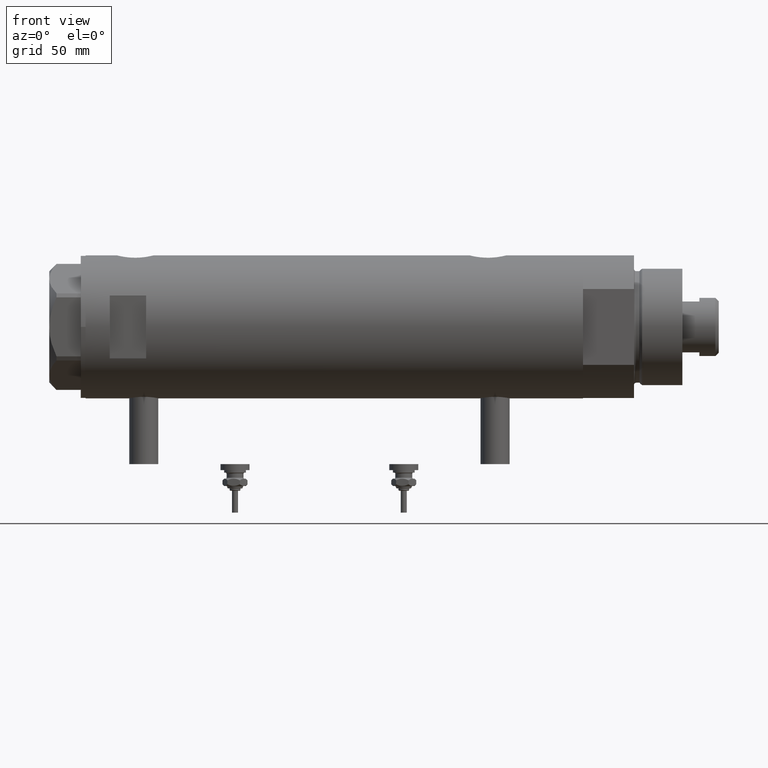
[diagram: clean part render]
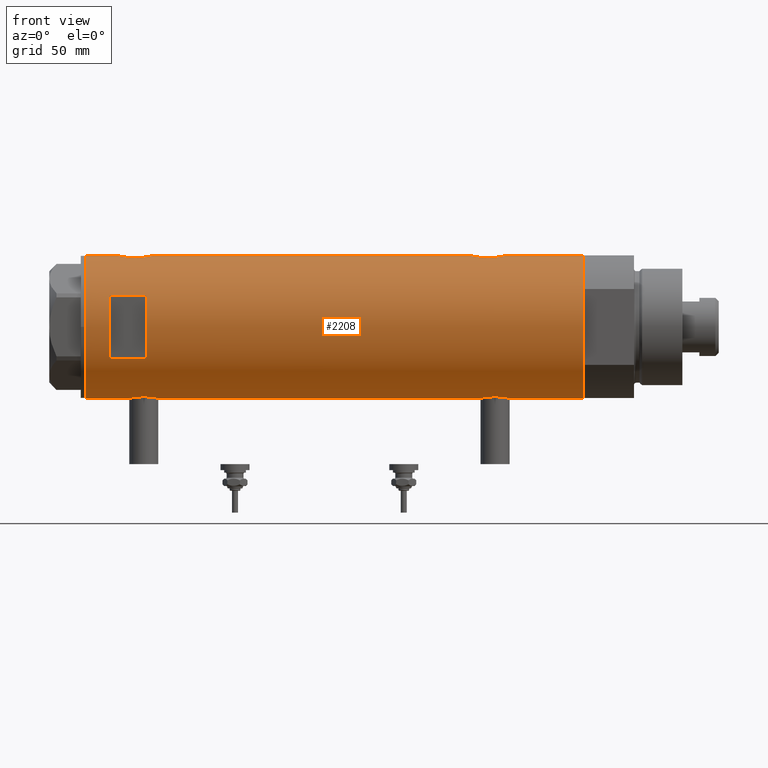
[diagram: same view with one face highlighted and labeled with its STEP entity id]
A machine part, front view. The second image highlights one B-rep face of the part: STEP entity #2208.
In plain terms, the highlighted cylindrical surface (partial cylindrical patch) has radius 29.5 mm, axis along (-1, -0, 0).
Its self-contained STEP definition (entity closure, byte-faithful):
#9 = CARTESIAN_POINT ( 'NONE',  ( -12.96148139681573319, -26.49999999999999645, -102.5999999999999943 ) ) ;
#16 = CARTESIAN_POINT ( 'NONE',  ( 0.000000000000000000, 0.000000000000000000, -102.5999999999999943 ) ) ;
#38 = EDGE_CURVE ( 'NONE', #5054, #2698, #5647, .T. ) ;
#50 = DIRECTION ( 'NONE',  ( 0.000000000000000000, 0.000000000000000000, 1.000000000000000000 ) ) ;
#72 = CARTESIAN_POINT ( 'NONE',  ( 28.54678862679669038, -7.438514536388041165, -62.41041725679207985 ) ) ;
#84 = CARTESIAN_POINT ( 'NONE',  ( -29.49128673965872238, -0.8227026017531463564, 84.80924441072095021 ) ) ;
#97 = CARTESIAN_POINT ( 'NONE',  ( 28.86290657878785026, -6.099358034152094099, -67.77130670042603811 ) ) ;
#110 = CARTESIAN_POINT ( 'NONE',  ( -28.87532468301956712, -6.038983942005353711, 76.97670632311465511 ) ) ;
#145 = CARTESIAN_POINT ( 'NONE',  ( -28.83028160285196151, -6.250189016175732526, 79.00967003214680062 ) ) ;
#168 = CARTESIAN_POINT ( 'NONE',  ( 28.62986945670067129, -7.114680680403742130, -60.97606223993307140 ) ) ;
#176 = ORIENTED_EDGE ( 'NONE', *, *, #4417, .F. ) ;
#196 = EDGE_LOOP ( 'NONE', ( #4236, #2558, #4154, #3562 ) ) ;
#231 = EDGE_CURVE ( 'NONE', #2698, #3925, #1364, .T. ) ;
#235 = CIRCLE ( 'NONE', #617, 29.50000000000000355 ) ;
#244 = ORIENTED_EDGE ( 'NONE', *, *, #3911, .T. ) ;
#252 = B_SPLINE_CURVE_WITH_KNOTS ( 'NONE', 3,
 ( #2697, #414, #2251, #3175, #1796, #3615, #913, #2729, #4532, #452, #2283, #1916, #4194, #5045, #3707, #5587, #5165, #110, #3800, #1501, #1442, #4589, #145, #971, #4170, #1854, #5503, #3266, #1092, #1979, #507, #2432, #2375, #2340, #5107, #542, #2855, #5554, #4132, #2882, #84, #3732, #4658 ),
 .UNSPECIFIED., .F., .F.,
 ( 4, 2, 2, 2, 2, 2, 2, 2, 2, 1, 2, 2, 2, 2, 2, 2, 2, 2, 2, 2, 2, 4 ),
 ( 0.01959598605283711936, 0.02082041500883365093, 0.02204484396483017902, 0.02265705844282843440, 0.02326927292082669324, 0.02449370187682320399, 0.02571813083281971821, 0.02694255978881623242, 0.02755477426681450515, 0.02816698874481278481, 0.02877920322281105753, 0.02939141770080933719, 0.03061584665680588957, 0.03184027561280243501, 0.03306470456879899433, 0.03367691904679726705, 0.03428913352479553978, 0.03551356248079206440, 0.03673799143678858903, 0.03735020591478684787, 0.03796242039278510672, 0.03918684934878163828 ),
 .UNSPECIFIED. ) ;
#261 = LINE ( 'NONE', #711, #4304 ) ;
#286 = CARTESIAN_POINT ( 'NONE',  ( 29.08294968506024247, -4.955368226349214034, 87.75096718198464885 ) ) ;
#288 = EDGE_CURVE ( 'NONE', #3810, #954, #404, .T. ) ;
#316 = CARTESIAN_POINT ( 'NONE',  ( 28.62983003203745369, -7.114781472982449451, 79.67726941146258923 ) ) ;
#350 = CARTESIAN_POINT ( 'NONE',  ( 28.98740664105171660, -5.478212189394670695, 76.97180483814203455 ) ) ;
#351 = CARTESIAN_POINT ( 'NONE',  ( -28.83909499632369133, -6.209928350489664517, -65.48382218917039665 ) ) ;
#374 = EDGE_CURVE ( 'NONE', #5068, #1773, #4092, .T. ) ;
#375 = CARTESIAN_POINT ( 'NONE',  ( 28.53070445389873200, -7.499926890973435789, 82.34953420512914590 ) ) ;
#377 = CARTESIAN_POINT ( 'NONE',  ( -29.49152014567324542, -0.8152473631539814969, -72.51035294833330624 ) ) ;
#404 = LINE ( 'NONE', #437, #3926 ) ;
#414 = CARTESIAN_POINT ( 'NONE',  ( -29.50000000000000711, -0.4084468586314294880, 72.34999999999999432 ) ) ;
#437 = CARTESIAN_POINT ( 'NONE',  ( 29.50000000000000355, 0.000000000000000000, -102.5999999999999943 ) ) ;
#442 = DIRECTION ( 'NONE',  ( 0.000000000000000000, 0.000000000000000000, 1.000000000000000000 ) ) ;
#445 = DIRECTION ( 'NONE',  ( 1.000000000000000000, 0.000000000000000000, 0.000000000000000000 ) ) ;
#446 = DIRECTION ( 'NONE',  ( 0.000000000000000000, 0.000000000000000000, 1.000000000000000000 ) ) ;
#452 = CARTESIAN_POINT ( 'NONE',  ( -29.25427426731712188, -3.815048240656433887, 73.63259231846663511 ) ) ;
#468 = CARTESIAN_POINT ( 'NONE',  ( -28.89828397447510966, -5.929977241120613307, -64.28388047758002699 ) ) ;
#488 = VERTEX_POINT ( 'NONE', #5191 ) ;
#507 = CARTESIAN_POINT ( 'NONE',  ( -29.12311479234995915, -4.702282052053731398, 82.72223528886483734 ) ) ;
#527 = CARTESIAN_POINT ( 'NONE',  ( 29.08294968506023181, -4.955368226349209593, -57.74903281801530142 ) ) ;
#542 = CARTESIAN_POINT ( 'NONE',  ( -29.37136442049237672, -2.777615426151010869, 84.21365112622117977 ) ) ;
#560 = CARTESIAN_POINT ( 'NONE',  ( 29.48775985681159639, -0.9798361908152574129, -55.94769556118672682 ) ) ;
#582 = CARTESIAN_POINT ( 'NONE',  ( -29.50000000000000355, -5.649958391113855330E-16, 84.85000000000000853 ) ) ;
#617 = AXIS2_PLACEMENT_3D ( 'NONE', #4978, #446, #5802 ) ;
#622 = EDGE_CURVE ( 'NONE', #2407, #4667, #261, .T. ) ;
#638 = VECTOR ( 'NONE', #1623, 1000.000000000000000 ) ;
#683 = VERTEX_POINT ( 'NONE', #2266 ) ;
#711 = CARTESIAN_POINT ( 'NONE',  ( 29.50000000000000355, 0.000000000000000000, -102.5999999999999943 ) ) ;
#751 = CARTESIAN_POINT ( 'NONE',  ( 28.59279484545186989, -7.260293545345781752, 80.15593442015527614 ) ) ;
#779 = CARTESIAN_POINT ( 'NONE',  ( 29.33743940633121028, -3.100990836771693626, 88.93327512439064719 ) ) ;
#788 = CARTESIAN_POINT ( 'NONE',  ( 29.50000000000000355, 0.000000000000000000, -102.5999999999999943 ) ) ;
#807 = CARTESIAN_POINT ( 'NONE',  ( 29.50000000000000711, -0.4976091310423271241, 74.59999999999996589 ) ) ;
#843 = CARTESIAN_POINT ( 'NONE',  ( 28.53399451186754732, -7.487442594623194836, 82.59897485501112158 ) ) ;
#844 = CARTESIAN_POINT ( 'NONE',  ( -29.45566469296798928, -1.628675872921106160, -60.26243967371323862 ) ) ;
#875 = LINE ( 'NONE', #2691, #5213 ) ;
#913 = CARTESIAN_POINT ( 'NONE',  ( -29.37055817176825201, -2.766456155496577196, 72.99186392411090196 ) ) ;
#954 = VERTEX_POINT ( 'NONE', #5628 ) ;
#966 = CARTESIAN_POINT ( 'NONE',  ( 12.96148139681573319, -26.49999999999998934, 77.59999999999996589 ) ) ;
#971 = CARTESIAN_POINT ( 'NONE',  ( -28.83909499632370199, -6.209928350489659188, 79.41617781082962324 ) ) ;
#978 = CARTESIAN_POINT ( 'NONE',  ( 29.50000000000000355, 0.000000000000000000, -102.5999999999999943 ) ) ;
#1010 = CARTESIAN_POINT ( 'NONE',  ( -29.50000000000000355, 3.612708057484692393E-15, 102.5999999999999943 ) ) ;
#1050 = CARTESIAN_POINT ( 'NONE',  ( 29.08168479815707386, -4.954011967599724287, -69.03627368515267904 ) ) ;
#1080 = CARTESIAN_POINT ( 'NONE',  ( 29.50000000000000355, -1.919926123348039602E-15, -70.89999999999999147 ) ) ;
#1092 = CARTESIAN_POINT ( 'NONE',  ( -29.05872136210575007, -5.084685578900221437, 82.24009991908759787 ) ) ;
#1113 = CARTESIAN_POINT ( 'NONE',  ( 29.31438578683261298, -3.335040812377227049, -70.13547276843773659 ) ) ;
#1132 = AXIS2_PLACEMENT_3D ( 'NONE', #2414, #3749, #1482 ) ;
#1195 = CARTESIAN_POINT ( 'NONE',  ( 28.53064705443909688, -7.500145243772297299, 81.60755296708880735 ) ) ;
#1229 = CARTESIAN_POINT ( 'NONE',  ( 29.08168479815708096, -4.954011967599733168, 76.46372631484730675 ) ) ;
#1254 = CARTESIAN_POINT ( 'NONE',  ( 29.43916859571211830, -1.954329820671505402, 74.84235520757910365 ) ) ;
#1256 = CARTESIAN_POINT ( 'NONE',  ( -28.99772237063719160, -5.425436006677736955, -63.17037325447360985 ) ) ;
#1282 = CARTESIAN_POINT ( 'NONE',  ( 28.95619957017310853, -5.640369376407885937, 87.04939726490175644 ) ) ;
#1285 = CARTESIAN_POINT ( 'NONE',  ( -29.33428005013168871, -3.127775714777726979, -71.71493203872593369 ) ) ;
#1329 = CARTESIAN_POINT ( 'NONE',  ( 0.000000000000000000, 0.000000000000000000, 77.60000000000007958 ) ) ;
#1341 = CARTESIAN_POINT ( 'NONE',  ( -28.87532468301956357, -6.038983942005360817, -67.92329367688532216 ) ) ;
#1364 = B_SPLINE_CURVE_WITH_KNOTS ( 'NONE', 3,
 ( #4970, #3196, #377, #5880, #4435, #4462, #1785, #1285, #5821, #1812, #3631, #1729, #3166, #2186, #2689, #3514, #3604, #1341, #2716, #4910, #4879, #3107, #2631, #351, #5455, #468, #3994, #1256, #2212, #5911, #3543, #1368, #5369, #3576, #3077, #2298, #5793, #5429, #844, #2667, #5003, #4016, #5846 ),
 .UNSPECIFIED., .F., .F.,
 ( 4, 2, 2, 2, 2, 2, 2, 2, 2, 1, 2, 2, 2, 2, 2, 2, 2, 2, 2, 2, 2, 4 ),
 ( 0.01959598605283713324, 0.02082041500883367521, 0.02204484396483021719, 0.02265705844282847950, 0.02326927292082674181, 0.02449370187682326991, 0.02571813083281979800, 0.02694255978881632610, 0.02755477426681458841, 0.02816698874481285420, 0.02877920322281111998, 0.02939141770080938229, 0.03061584665680591039, 0.03184027561280243501, 0.03306470456879896658, 0.03367691904679723236, 0.03428913352479549814, 0.03551356248079203665, 0.03673799143678857515, 0.03735020591478684787, 0.03796242039278512059, 0.03918684934878166604 ),
 .UNSPECIFIED. ) ;
#1368 = CARTESIAN_POINT ( 'NONE',  ( -29.14490888978863481, -4.565669626908231749, -62.02701820123785126 ) ) ;
#1369 = ORIENTED_EDGE ( 'NONE', *, *, #1694, .F. ) ;
#1407 = VECTOR ( 'NONE', #3505, 1000.000000000000000 ) ;
#1442 = CARTESIAN_POINT ( 'NONE',  ( -28.83260549167351527, -6.239494599049529633, 78.18384915698197801 ) ) ;
#1455 = CARTESIAN_POINT ( 'NONE',  ( 28.59279484545185923, -7.260293545345786193, -65.34406557984468122 ) ) ;
#1482 = DIRECTION ( 'NONE',  ( 1.000000000000000000, 0.000000000000000000, 0.000000000000000000 ) ) ;
#1485 = CARTESIAN_POINT ( 'NONE',  ( 28.62983003203745014, -7.114781472982452115, -65.82273058853736813 ) ) ;
#1490 = VERTEX_POINT ( 'NONE', #788 ) ;
#1501 = CARTESIAN_POINT ( 'NONE',  ( -28.84137202824162571, -6.198846007008988579, 77.77611738876129266 ) ) ;
#1521 = CARTESIAN_POINT ( 'NONE',  ( 29.31311917412634926, -3.322476152549155071, -56.67157014735702347 ) ) ;
#1550 = CARTESIAN_POINT ( 'NONE',  ( 28.72051071455670623, -6.739402597165503828, -66.72718973703749157 ) ) ;
#1578 = CARTESIAN_POINT ( 'NONE',  ( 29.50000000000000355, 0.000000000000000000, 102.5999999999999943 ) ) ;
#1623 = DIRECTION ( 'NONE',  ( 0.000000000000000000, 0.000000000000000000, 1.000000000000000000 ) ) ;
#1636 = VERTEX_POINT ( 'NONE', #966 ) ;
#1638 = CARTESIAN_POINT ( 'NONE',  ( 29.31311917412635992, -3.322476152549159067, 88.82842985264295521 ) ) ;
#1670 = CARTESIAN_POINT ( 'NONE',  ( 29.43922820968271736, -1.954457150219037542, 89.35789347245771808 ) ) ;
#1694 = EDGE_CURVE ( 'NONE', #3810, #488, #4442, .T. ) ;
#1729 = CARTESIAN_POINT ( 'NONE',  ( -29.12379578281188230, -4.705261494361433705, -70.43387957720274528 ) ) ;
#1754 = CARTESIAN_POINT ( 'NONE',  ( 29.50000000000000355, -8.867907290838723877E-21, 89.59999999999998010 ) ) ;
#1773 = VERTEX_POINT ( 'NONE', #2593 ) ;
#1785 = CARTESIAN_POINT ( 'NONE',  ( -29.37055817176824846, -2.766456155496580305, -71.90813607588914635 ) ) ;
#1796 = CARTESIAN_POINT ( 'NONE',  ( -29.43333839972900989, -2.017691896334575130, 72.67064010952158526 ) ) ;
#1812 = CARTESIAN_POINT ( 'NONE',  ( -29.25427426731712899, -3.815048240656443657, -71.26740768153337058 ) ) ;
#1843 = DIRECTION ( 'NONE',  ( -0.000000000000000000, -0.000000000000000000, -1.000000000000000000 ) ) ;
#1846 = AXIS2_PLACEMENT_3D ( 'NONE', #16, #1850, #1912 ) ;
#1850 = DIRECTION ( 'NONE',  ( 0.000000000000000000, 0.000000000000000000, 1.000000000000000000 ) ) ;
#1854 = CARTESIAN_POINT ( 'NONE',  ( -28.89828397447510966, -5.929977241120605314, 80.61611952241997869 ) ) ;
#1906 = CARTESIAN_POINT ( 'NONE',  ( 28.53070445389874266, -7.499926890973439342, -63.15046579487081146 ) ) ;
#1912 = DIRECTION ( 'NONE',  ( 1.000000000000000000, 0.000000000000000000, 0.000000000000000000 ) ) ;
#1916 = CARTESIAN_POINT ( 'NONE',  ( -29.12379578281188230, -4.705261494361423935, 74.46612042279726040 ) ) ;
#1922 = LINE ( 'NONE', #978, #2640 ) ;
#1925 = ORIENTED_EDGE ( 'NONE', *, *, #622, .T. ) ;
#1929 = CARTESIAN_POINT ( 'NONE',  ( 28.89374847711160754, -5.952001739005060799, -67.96983981079635839 ) ) ;
#1966 = CARTESIAN_POINT ( 'NONE',  ( 29.17410189149616428, -4.377709617224027738, -69.49475827476021550 ) ) ;
#1970 = VERTEX_POINT ( 'NONE', #3492 ) ;
#1979 = CARTESIAN_POINT ( 'NONE',  ( -29.08006251441182854, -4.961575945539721921, 82.40618502052524263 ) ) ;
#2004 = ORIENTED_EDGE ( 'NONE', *, *, #231, .F. ) ;
#2023 = CARTESIAN_POINT ( 'NONE',  ( 29.23250901027694937, -3.968959760999276831, -57.03153982712335335 ) ) ;
#2087 = DIRECTION ( 'NONE',  ( 0.000000000000000000, 0.000000000000000000, 1.000000000000000000 ) ) ;
#2100 = B_SPLINE_CURVE_WITH_KNOTS ( 'NONE', 3,
 ( #3102, #4371, #5397, #1670, #3901, #779, #1638, #2599, #5842, #4461, #286, #4397, #1282, #3449, #5727, #5791, #3991, #5278, #4907, #2115, #3927, #843, #375, #1195, #2542, #751, #316, #3019, #3512, #4431, #2209, #5315, #350, #4015, #1229, #3051, #4876, #2183, #5339, #3955, #1254, #3074, #807, #2630 ),
 .UNSPECIFIED., .F., .F.,
 ( 4, 2, 2, 2, 2, 2, 2, 2, 2, 2, 2, 2, 2, 2, 2, 2, 2, 2, 2, 2, 2, 4 ),
 ( 0.02354540741801909587, 0.02501659793198026879, 0.02648778844594144172, 0.02722338370292202298, 0.02795897895990260076, 0.02943016947386375981, 0.03016576473084434107, 0.03090135998782492233, 0.03237255050178604321, 0.03384374101574717103, 0.03457933627272773841, 0.03531493152970829885, 0.03678612204366942667, 0.03825731255763055449, 0.03972850307159167538, 0.04046409832857222888, 0.04119969358555276850, 0.04193528884253332201, 0.04267088409951386857, 0.04414207461347498251, 0.04561326512743610340, 0.04708445564139722428 ),
 .UNSPECIFIED. ) ;
#2103 = EDGE_CURVE ( 'NONE', #1970, #5068, #2710, .T. ) ;
#2115 = CARTESIAN_POINT ( 'NONE',  ( 28.55627543367307553, -7.402134446380880917, 83.33219650318234528 ) ) ;
#2183 = CARTESIAN_POINT ( 'NONE',  ( 29.26166309680877475, -3.765013078516723066, 75.59489767946935501 ) ) ;
#2186 = CARTESIAN_POINT ( 'NONE',  ( -28.99856997507318823, -5.420860550814443179, -69.43723012145801476 ) ) ;
#2208 = ADVANCED_FACE ( 'NONE', ( #5065, #5041 ), #3611, .T. ) ;
#2209 = CARTESIAN_POINT ( 'NONE',  ( 28.89374847711160754, -5.952001739005070569, 77.53016018920365582 ) ) ;
#2212 = CARTESIAN_POINT ( 'NONE',  ( -29.05872136210575718, -5.084685578900231206, -62.65990008091243624 ) ) ;
#2240 = DIRECTION ( 'NONE',  ( 0.000000000000000000, 0.000000000000000000, 1.000000000000000000 ) ) ;
#2251 = CARTESIAN_POINT ( 'NONE',  ( -29.49152014567325253, -0.8152473631539810528, 72.38964705166668523 ) ) ;
#2266 = CARTESIAN_POINT ( 'NONE',  ( -29.50000000000000355, 3.612706708236066082E-15, 72.34999999999999432 ) ) ;
#2283 = CARTESIAN_POINT ( 'NONE',  ( -29.21108587560690495, -4.128853169727745964, 73.89032723090410570 ) ) ;
#2298 = CARTESIAN_POINT ( 'NONE',  ( -29.37136442049237672, -2.777615426151009537, -60.68634887377884013 ) ) ;
#2340 = CARTESIAN_POINT ( 'NONE',  ( -29.25361239466580798, -3.820294933898100709, 83.56357989714041423 ) ) ;
#2351 = CARTESIAN_POINT ( 'NONE',  ( -29.50000000000000355, 3.612708057484692393E-15, -102.5999999999999943 ) ) ;
#2375 = CARTESIAN_POINT ( 'NONE',  ( -29.21016169868140366, -4.135295259288786163, 83.30390088086510048 ) ) ;
#2392 = CARTESIAN_POINT ( 'NONE',  ( 29.33743940633121028, -3.100990836771692738, -56.56672487560931728 ) ) ;
#2396 = EDGE_CURVE ( 'NONE', #2407, #954, #2100, .T. ) ;
#2407 = VERTEX_POINT ( 'NONE', #1754 ) ;
#2414 = CARTESIAN_POINT ( 'NONE',  ( 0.000000000000000000, 0.000000000000000000, -102.5999999999999943 ) ) ;
#2418 = CARTESIAN_POINT ( 'NONE',  ( 28.72151714661535138, -6.735173278284154463, -60.06359529429123256 ) ) ;
#2432 = CARTESIAN_POINT ( 'NONE',  ( -29.14490888978864191, -4.565669626908226419, 82.87298179876219706 ) ) ;
#2450 = CARTESIAN_POINT ( 'NONE',  ( 29.50000000000000355, -8.867907290838723877E-21, -55.89999999999997016 ) ) ;
#2542 = CARTESIAN_POINT ( 'NONE',  ( 28.54347630091233512, -7.451827970232800524, 81.11943218216039497 ) ) ;
#2558 = ORIENTED_EDGE ( 'NONE', *, *, #374, .F. ) ;
#2593 = CARTESIAN_POINT ( 'NONE',  ( -12.96148139681573319, -26.49999999999998934, 77.59999999999996589 ) ) ;
#2599 = CARTESIAN_POINT ( 'NONE',  ( 29.26065241255351523, -3.756597382275449704, 88.59604434819190999 ) ) ;
#2630 = CARTESIAN_POINT ( 'NONE',  ( 29.50000000000000355, -2.245054425791785664E-15, 74.59999999999996589 ) ) ;
#2631 = CARTESIAN_POINT ( 'NONE',  ( -28.83028160285196506, -6.250189016175740520, -65.89032996785323348 ) ) ;
#2640 = VECTOR ( 'NONE', #4238, 1000.000000000000000 ) ;
#2667 = CARTESIAN_POINT ( 'NONE',  ( -29.46613381094002193, -1.427468570127975456, -60.21172459459602777 ) ) ;
#2689 = CARTESIAN_POINT ( 'NONE',  ( -28.96147498926091401, -5.613273026676368183, -69.07892698342581639 ) ) ;
#2691 = CARTESIAN_POINT ( 'NONE',  ( 12.96148139681573319, -26.49999999999999645, -102.5999999999999943 ) ) ;
#2697 = CARTESIAN_POINT ( 'NONE',  ( -29.50000000000000355, 3.612706708236066082E-15, 72.34999999999999432 ) ) ;
#2698 = VERTEX_POINT ( 'NONE', #4244 ) ;
#2710 = CIRCLE ( 'NONE', #3188, 29.50000000000000355 ) ;
#2716 = CARTESIAN_POINT ( 'NONE',  ( -28.85437274499025406, -6.138402965889072860, -67.52756596705081904 ) ) ;
#2729 = CARTESIAN_POINT ( 'NONE',  ( -29.33428005013168871, -3.127775714777721650, 73.18506796127408620 ) ) ;
#2837 = CARTESIAN_POINT ( 'NONE',  ( 29.50000000000000355, -0.4905639552620941202, -55.89999999999995595 ) ) ;
#2855 = CARTESIAN_POINT ( 'NONE',  ( -29.41741605749267308, -2.213861184585004249, 84.44831174451374523 ) ) ;
#2869 = EDGE_CURVE ( 'NONE', #3960, #4667, #235, .T. ) ;
#2871 = CARTESIAN_POINT ( 'NONE',  ( 29.26065241255351168, -3.756597382275448371, -56.90395565180807580 ) ) ;
#2882 = CARTESIAN_POINT ( 'NONE',  ( -29.46613381094001127, -1.427468570127966574, 84.68827540540398502 ) ) ;
#2900 = CARTESIAN_POINT ( 'NONE',  ( 28.54347630091233512, -7.451827970232803189, -64.38056781783956239 ) ) ;
#2928 = CARTESIAN_POINT ( 'NONE',  ( -29.50000000000000355, 3.612708057484692393E-15, -102.5999999999999943 ) ) ;
#2932 = CARTESIAN_POINT ( 'NONE',  ( 29.40305664607911851, -2.432276947006143164, -70.51147801006587201 ) ) ;
#3019 = CARTESIAN_POINT ( 'NONE',  ( 28.72051071455670979, -6.739402597165495834, 78.77281026296242317 ) ) ;
#3051 = CARTESIAN_POINT ( 'NONE',  ( 29.14351131874356682, -4.576283785862482745, 76.15294675151480419 ) ) ;
#3074 = CARTESIAN_POINT ( 'NONE',  ( 29.48742104091791205, -0.9879539515379935910, 74.64904301646019746 ) ) ;
#3077 = CARTESIAN_POINT ( 'NONE',  ( -29.33479068874800078, -3.136645782783869851, -60.87844745385528711 ) ) ;
#3102 = CARTESIAN_POINT ( 'NONE',  ( 29.50000000000000355, -8.867907290838723877E-21, 89.59999999999998010 ) ) ;
#3107 = CARTESIAN_POINT ( 'NONE',  ( -28.83034328164762528, -6.249904501012249369, -66.50914539564061556 ) ) ;
#3166 = CARTESIAN_POINT ( 'NONE',  ( -29.07948744859177381, -4.968520850090771823, -70.11336367378893897 ) ) ;
#3175 = CARTESIAN_POINT ( 'NONE',  ( -29.45797511864983420, -1.625450914296656002, 72.55094872469950928 ) ) ;
#3176 = ORIENTED_EDGE ( 'NONE', *, *, #4216, .F. ) ;
#3188 = AXIS2_PLACEMENT_3D ( 'NONE', #4127, #4525, #445 ) ;
#3196 = CARTESIAN_POINT ( 'NONE',  ( -29.50000000000000711, -0.4084468586314322081, -72.54999999999999716 ) ) ;
#3208 = DIRECTION ( 'NONE',  ( -0.000000000000000000, -4.625929269271487689E-15, 1.000000000000000000 ) ) ;
#3220 = AXIS2_PLACEMENT_3D ( 'NONE', #1329, #3208, #4078 ) ;
#3236 = CARTESIAN_POINT ( 'NONE',  ( -29.50000000000000355, 3.612708057484692393E-15, -102.5999999999999943 ) ) ;
#3266 = CARTESIAN_POINT ( 'NONE',  ( -28.99772237063717739, -5.425436006677727185, 81.72962674552640294 ) ) ;
#3283 = CARTESIAN_POINT ( 'NONE',  ( 28.55627543367307553, -7.402134446380881805, -62.16780349681759787 ) ) ;
#3314 = CARTESIAN_POINT ( 'NONE',  ( 28.53064705443909332, -7.500145243772297299, -63.89244703291116423 ) ) ;
#3339 = CARTESIAN_POINT ( 'NONE',  ( 29.48742104091792271, -0.9879539515379904824, -70.85095698353975990 ) ) ;
#3368 = CARTESIAN_POINT ( 'NONE',  ( 29.05028789344173035, -5.134328181356800691, -68.87246457606266858 ) ) ;
#3398 = CARTESIAN_POINT ( 'NONE',  ( 28.77541267587657714, -6.504036106227648162, -59.63371449864082052 ) ) ;
#3426 = ORIENTED_EDGE ( 'NONE', *, *, #38, .F. ) ;
#3449 = CARTESIAN_POINT ( 'NONE',  ( 28.89374408016310269, -5.952042782108800445, 86.66984537025962254 ) ) ;
#3492 = CARTESIAN_POINT ( 'NONE',  ( 12.96148139681573319, -26.49999999999998934, 92.59999999999999432 ) ) ;
#3505 = DIRECTION ( 'NONE',  ( 0.000000000000000000, 0.000000000000000000, 1.000000000000000000 ) ) ;
#3512 = CARTESIAN_POINT ( 'NONE',  ( 28.77424839213763264, -6.509286280845844708, 78.34218748394037846 ) ) ;
#3514 = CARTESIAN_POINT ( 'NONE',  ( -28.91427970886710597, -5.849862889315917691, -68.50993133128852719 ) ) ;
#3541 = VECTOR ( 'NONE', #50, 1000.000000000000000 ) ;
#3543 = CARTESIAN_POINT ( 'NONE',  ( -29.12311479234994849, -4.702282052053745609, -62.17776471113518966 ) ) ;
#3562 = ORIENTED_EDGE ( 'NONE', *, *, #5781, .F. ) ;
#3576 = CARTESIAN_POINT ( 'NONE',  ( -29.25361239466581864, -3.820294933898108258, -61.33642010285960566 ) ) ;
#3604 = CARTESIAN_POINT ( 'NONE',  ( -28.89999183068148270, -5.919812056825926483, -68.31500238835417349 ) ) ;
#3611 = CYLINDRICAL_SURFACE ( 'NONE', #1846, 29.50000000000000355 ) ;
#3615 = CARTESIAN_POINT ( 'NONE',  ( -29.38738983524999782, -2.582042051636495028, 72.90464828404618913 ) ) ;
#3631 = CARTESIAN_POINT ( 'NONE',  ( -29.21108587560690495, -4.128853169727751293, -71.00967276909594261 ) ) ;
#3707 = CARTESIAN_POINT ( 'NONE',  ( -28.96147498926092112, -5.613273026676368183, 75.82107301657420351 ) ) ;
#3720 = CARTESIAN_POINT ( 'NONE',  ( 28.89374408016310269, -5.952042782108800445, -58.83015462974032062 ) ) ;
#3732 = CARTESIAN_POINT ( 'NONE',  ( -29.50000000000000000, -0.4141077724969869922, 84.84999999999999432 ) ) ;
#3749 = DIRECTION ( 'NONE',  ( 0.000000000000000000, 0.000000000000000000, 1.000000000000000000 ) ) ;
#3752 = CARTESIAN_POINT ( 'NONE',  ( 28.95592074821772854, -5.641779806288295340, -68.34773495802029686 ) ) ;
#3771 = ORIENTED_EDGE ( 'NONE', *, *, #4749, .F. ) ;
#3780 = CIRCLE ( 'NONE', #3220, 29.50000000000000355 ) ;
#3785 = CARTESIAN_POINT ( 'NONE',  ( 29.43916859571211120, -1.954329820671502516, -70.65764479242088214 ) ) ;
#3800 = CARTESIAN_POINT ( 'NONE',  ( -28.85437274499025406, -6.138402965889066643, 77.37243403294918664 ) ) ;
#3810 = VERTEX_POINT ( 'NONE', #4666 ) ;
#3820 = CARTESIAN_POINT ( 'NONE',  ( 28.53399451186755442, -7.487442594623195724, -62.90102514498884290 ) ) ;
#3886 = LINE ( 'NONE', #5713, #638 ) ;
#3901 = CARTESIAN_POINT ( 'NONE',  ( 29.40378957563274653, -2.423455993307769507, 89.21449460115985630 ) ) ;
#3911 = EDGE_CURVE ( 'NONE', #1490, #488, #1922, .T. ) ;
#3925 = VERTEX_POINT ( 'NONE', #5510 ) ;
#3926 = VECTOR ( 'NONE', #2240, 1000.000000000000000 ) ;
#3927 = CARTESIAN_POINT ( 'NONE',  ( 28.54678862679668327, -7.438514536388042053, 83.08958274320788462 ) ) ;
#3955 = CARTESIAN_POINT ( 'NONE',  ( 29.40305664607912917, -2.432276947006154710, 74.98852198993408535 ) ) ;
#3960 = VERTEX_POINT ( 'NONE', #1010 ) ;
#3991 = CARTESIAN_POINT ( 'NONE',  ( 28.72151714661535848, -6.735173278284159792, 85.43640470570878165 ) ) ;
#3994 = CARTESIAN_POINT ( 'NONE',  ( -28.96072448608915195, -5.617106371651702013, -63.52917268339557211 ) ) ;
#4015 = CARTESIAN_POINT ( 'NONE',  ( 29.05028789344173035, -5.134328181356801579, 76.62753542393731720 ) ) ;
#4016 = CARTESIAN_POINT ( 'NONE',  ( -29.50000000000000355, -0.4141077724969879359, -60.04999999999999005 ) ) ;
#4052 = ORIENTED_EDGE ( 'NONE', *, *, #4725, .T. ) ;
#4078 = DIRECTION ( 'NONE',  ( 1.776356839400250267E-15, 1.000000000000000000, 4.704334850106595203E-15 ) ) ;
#4092 = LINE ( 'NONE', #9, #4199 ) ;
#4127 = CARTESIAN_POINT ( 'NONE',  ( 0.000000000000000000, 0.000000000000000000, 92.59999999999999432 ) ) ;
#4132 = CARTESIAN_POINT ( 'NONE',  ( -29.45566469296797507, -1.628675872921092616, 84.63756032628675996 ) ) ;
#4150 = EDGE_CURVE ( 'NONE', #1773, #1636, #3780, .T. ) ;
#4154 = ORIENTED_EDGE ( 'NONE', *, *, #2103, .F. ) ;
#4170 = CARTESIAN_POINT ( 'NONE',  ( -28.87288655002252113, -6.050870399762838581, 80.21750540721806999 ) ) ;
#4183 = CARTESIAN_POINT ( 'NONE',  ( 28.77424839213763619, -6.509286280845844708, -67.15781251605956470 ) ) ;
#4194 = CARTESIAN_POINT ( 'NONE',  ( -29.07948744859177381, -4.968520850090764718, 74.78663632621106672 ) ) ;
#4199 = VECTOR ( 'NONE', #1843, 1000.000000000000000 ) ;
#4216 = EDGE_CURVE ( 'NONE', #683, #4685, #252, .T. ) ;
#4236 = ORIENTED_EDGE ( 'NONE', *, *, #4150, .F. ) ;
#4238 = DIRECTION ( 'NONE',  ( 0.000000000000000000, 0.000000000000000000, 1.000000000000000000 ) ) ;
#4244 = CARTESIAN_POINT ( 'NONE',  ( -29.50000000000000355, 3.612706708267620518E-15, -72.54999999999999716 ) ) ;
#4251 = CARTESIAN_POINT ( 'NONE',  ( 28.95619957017311563, -5.640369376407885049, -58.45060273509820092 ) ) ;
#4304 = VECTOR ( 'NONE', #2087, 1000.000000000000000 ) ;
#4371 = CARTESIAN_POINT ( 'NONE',  ( 29.50000000000000355, -0.4905639552620948418, 89.59999999999996589 ) ) ;
#4397 = CARTESIAN_POINT ( 'NONE',  ( 28.98816846638396427, -5.474212100855884167, 87.23252159883304557 ) ) ;
#4417 = EDGE_CURVE ( 'NONE', #3925, #683, #3886, .T. ) ;
#4431 = CARTESIAN_POINT ( 'NONE',  ( 28.86290657878786092, -6.099358034152096764, 77.72869329957393347 ) ) ;
#4435 = CARTESIAN_POINT ( 'NONE',  ( -29.43333839972901345, -2.017691896334584012, -72.22935989047843464 ) ) ;
#4442 = B_SPLINE_CURVE_WITH_KNOTS ( 'NONE', 3,
 ( #2450, #2837, #560, #4739, #4675, #2392, #1521, #2871, #2023, #4608, #527, #5668, #4251, #3720, #5543, #3398, #2418, #168, #5128, #3283, #72, #3820, #1906, #3314, #2900, #1455, #1485, #1550, #4183, #97, #1929, #3752, #5574, #3368, #1050, #5612, #1966, #5188, #1113, #2932, #3785, #3339, #5155, #1080 ),
 .UNSPECIFIED., .F., .F.,
 ( 4, 2, 2, 2, 2, 2, 2, 2, 2, 2, 2, 2, 2, 2, 2, 2, 2, 2, 2, 2, 2, 4 ),
 ( 0.02354540741801909587, 0.02501659793198023757, 0.02648778844594137927, 0.02722338370292194665, 0.02795897895990251403, 0.02943016947386364879, 0.03016576473084422311, 0.03090135998782480090, 0.03237255050178593219, 0.03384374101574706695, 0.03457933627272764820, 0.03531493152970824334, 0.03678612204366940586, 0.03825731255763055449, 0.03972850307159171007, 0.04046409832857227051, 0.04119969358555283095, 0.04193528884253339140, 0.04267088409951395184, 0.04414207461347504496, 0.04561326512743613809, 0.04708445564139723122 ),
 .UNSPECIFIED. ) ;
#4461 = CARTESIAN_POINT ( 'NONE',  ( 29.14531914445117877, -4.579221598645971447, 88.05990232992807876 ) ) ;
#4462 = CARTESIAN_POINT ( 'NONE',  ( -29.38738983524999782, -2.582042051636505686, -71.99535171595380234 ) ) ;
#4525 = DIRECTION ( 'NONE',  ( -0.000000000000000000, 0.000000000000000000, -1.000000000000000000 ) ) ;
#4532 = CARTESIAN_POINT ( 'NONE',  ( -29.31475612970062627, -3.305202271067055442, 73.29152131156146766 ) ) ;
#4589 = CARTESIAN_POINT ( 'NONE',  ( -28.83034328164762172, -6.249904501012241376, 78.39085460435941854 ) ) ;
#4608 = CARTESIAN_POINT ( 'NONE',  ( 29.14531914445116811, -4.579221598645975000, -57.44009767007188572 ) ) ;
#4634 = CARTESIAN_POINT ( 'NONE',  ( -12.96148139681573319, -26.49999999999998934, 92.59999999999999432 ) ) ;
#4658 = CARTESIAN_POINT ( 'NONE',  ( -29.50000000000000355, -5.649958391113855330E-16, 84.85000000000000853 ) ) ;
#4666 = CARTESIAN_POINT ( 'NONE',  ( 29.50000000000000355, -8.867907290838723877E-21, -55.89999999999997016 ) ) ;
#4667 = VERTEX_POINT ( 'NONE', #1578 ) ;
#4675 = CARTESIAN_POINT ( 'NONE',  ( 29.40378957563274653, -2.423455993307770395, -56.28550539884012949 ) ) ;
#4685 = VERTEX_POINT ( 'NONE', #582 ) ;
#4725 = EDGE_CURVE ( 'NONE', #5054, #1490, #4913, .T. ) ;
#4739 = CARTESIAN_POINT ( 'NONE',  ( 29.43922820968271381, -1.954457150219040429, -56.14210652754223219 ) ) ;
#4749 = EDGE_CURVE ( 'NONE', #4685, #3960, #5186, .T. ) ;
#4848 = EDGE_LOOP ( 'NONE', ( #3426, #4052, #244, #1369, #5565, #5030, #1925, #5382, #3771, #3176, #176, #2004 ) ) ;
#4876 = CARTESIAN_POINT ( 'NONE',  ( 29.17410189149617139, -4.377709617224038396, 76.00524172523977029 ) ) ;
#4879 = CARTESIAN_POINT ( 'NONE',  ( -28.83260549167351527, -6.239494599049539403, -66.71615084301799925 ) ) ;
#4907 = CARTESIAN_POINT ( 'NONE',  ( 28.59337635119608123, -7.258007499531553108, 84.05216225651358286 ) ) ;
#4910 = CARTESIAN_POINT ( 'NONE',  ( -28.84137202824162571, -6.198846007008994796, -67.12388261123875566 ) ) ;
#4913 = CIRCLE ( 'NONE', #1132, 29.50000000000000355 ) ;
#4970 = CARTESIAN_POINT ( 'NONE',  ( -29.50000000000000355, 3.612706708267620518E-15, -72.54999999999999716 ) ) ;
#4978 = CARTESIAN_POINT ( 'NONE',  ( 0.000000000000000000, 0.000000000000000000, 102.5999999999999943 ) ) ;
#5003 = CARTESIAN_POINT ( 'NONE',  ( -29.49128673965872949, -0.8227026017531592350, -60.09075558927906968 ) ) ;
#5030 = ORIENTED_EDGE ( 'NONE', *, *, #2396, .F. ) ;
#5041 = FACE_BOUND ( 'NONE', #196, .T. ) ;
#5045 = CARTESIAN_POINT ( 'NONE',  ( -28.99856997507319534, -5.420860550814436074, 75.46276987854201934 ) ) ;
#5054 = VERTEX_POINT ( 'NONE', #2351 ) ;
#5065 = FACE_OUTER_BOUND ( 'NONE', #4848, .T. ) ;
#5068 = VERTEX_POINT ( 'NONE', #4634 ) ;
#5107 = CARTESIAN_POINT ( 'NONE',  ( -29.33479068874800078, -3.136645782783863190, 84.02155254614470437 ) ) ;
#5128 = CARTESIAN_POINT ( 'NONE',  ( 28.59337635119607768, -7.258007499531554885, -61.44783774348636030 ) ) ;
#5155 = CARTESIAN_POINT ( 'NONE',  ( 29.49999999999999645, -0.4976091310423233494, -70.89999999999997726 ) ) ;
#5165 = CARTESIAN_POINT ( 'NONE',  ( -28.89999183068148270, -5.919812056825920266, 76.58499761164586062 ) ) ;
#5186 = LINE ( 'NONE', #2928, #1407 ) ;
#5188 = CARTESIAN_POINT ( 'NONE',  ( 29.26166309680877831, -3.765013078516706635, -69.90510232053063078 ) ) ;
#5191 = CARTESIAN_POINT ( 'NONE',  ( 29.50000000000000355, -1.919926123348039602E-15, -70.89999999999999147 ) ) ;
#5213 = VECTOR ( 'NONE', #442, 1000.000000000000000 ) ;
#5278 = CARTESIAN_POINT ( 'NONE',  ( 28.62986945670066774, -7.114680680403743018, 84.52393776006688597 ) ) ;
#5315 = CARTESIAN_POINT ( 'NONE',  ( 28.95592074821772854, -5.641779806288306887, 77.15226504197966051 ) ) ;
#5339 = CARTESIAN_POINT ( 'NONE',  ( 29.31438578683259877, -3.335040812377236819, 75.36452723156224920 ) ) ;
#5369 = CARTESIAN_POINT ( 'NONE',  ( -29.21016169868140722, -4.135295259288792380, -61.59609911913490521 ) ) ;
#5382 = ORIENTED_EDGE ( 'NONE', *, *, #2869, .F. ) ;
#5397 = CARTESIAN_POINT ( 'NONE',  ( 29.48775985681159284, -0.9798361908152548594, 89.55230443881325186 ) ) ;
#5429 = CARTESIAN_POINT ( 'NONE',  ( -29.43130053621386821, -2.021711243143699654, -60.38244954039819845 ) ) ;
#5455 = CARTESIAN_POINT ( 'NONE',  ( -28.87288655002252113, -6.050870399762843910, -64.68249459278192148 ) ) ;
#5503 = CARTESIAN_POINT ( 'NONE',  ( -28.96072448608914129, -5.617106371651694019, 81.37082731660440515 ) ) ;
#5510 = CARTESIAN_POINT ( 'NONE',  ( -29.50000000000000355, -1.590035304987910071E-15, -60.04999999999999005 ) ) ;
#5543 = CARTESIAN_POINT ( 'NONE',  ( 28.86327882047614679, -6.097569254709699571, -59.02632909088548985 ) ) ;
#5554 = CARTESIAN_POINT ( 'NONE',  ( -29.43130053621386111, -2.021711243143688108, 84.51755045960183566 ) ) ;
#5565 = ORIENTED_EDGE ( 'NONE', *, *, #288, .T. ) ;
#5574 = CARTESIAN_POINT ( 'NONE',  ( 28.98740664105172016, -5.478212189394670695, -68.52819516185790860 ) ) ;
#5587 = CARTESIAN_POINT ( 'NONE',  ( -28.91427970886710597, -5.849862889315915915, 76.39006866871152113 ) ) ;
#5612 = CARTESIAN_POINT ( 'NONE',  ( 29.14351131874355971, -4.576283785862469422, -69.34705324848518160 ) ) ;
#5628 = CARTESIAN_POINT ( 'NONE',  ( 29.50000000000000355, -2.245054425791785664E-15, 74.59999999999996589 ) ) ;
#5647 = LINE ( 'NONE', #3236, #3541 ) ;
#5668 = CARTESIAN_POINT ( 'NONE',  ( 28.98816846638395717, -5.474212100855879726, -58.26747840116692601 ) ) ;
#5713 = CARTESIAN_POINT ( 'NONE',  ( -29.50000000000000355, 3.612708057484692393E-15, -102.5999999999999943 ) ) ;
#5727 = CARTESIAN_POINT ( 'NONE',  ( 28.86327882047615390, -6.097569254709699571, 86.47367090911447463 ) ) ;
#5781 = EDGE_CURVE ( 'NONE', #1636, #1970, #875, .T. ) ;
#5791 = CARTESIAN_POINT ( 'NONE',  ( 28.77541267587656648, -6.504036106227646385, 85.86628550135911553 ) ) ;
#5793 = CARTESIAN_POINT ( 'NONE',  ( -29.41741605749266952, -2.213861184585006914, -60.45168825548628888 ) ) ;
#5802 = DIRECTION ( 'NONE',  ( 1.000000000000000000, 0.000000000000000000, 0.000000000000000000 ) ) ;
#5821 = CARTESIAN_POINT ( 'NONE',  ( -29.31475612970062272, -3.305202271067065656, -71.60847868843855224 ) ) ;
#5842 = CARTESIAN_POINT ( 'NONE',  ( 29.23250901027694937, -3.968959760999270614, 88.46846017287658981 ) ) ;
#5846 = CARTESIAN_POINT ( 'NONE',  ( -29.50000000000000355, -1.590035304987910071E-15, -60.04999999999999005 ) ) ;
#5880 = CARTESIAN_POINT ( 'NONE',  ( -29.45797511864982710, -1.625450914296657112, -72.34905127530043956 ) ) ;
#5911 = CARTESIAN_POINT ( 'NONE',  ( -29.08006251441183920, -4.961575945539737909, -62.49381497947477015 ) ) ;